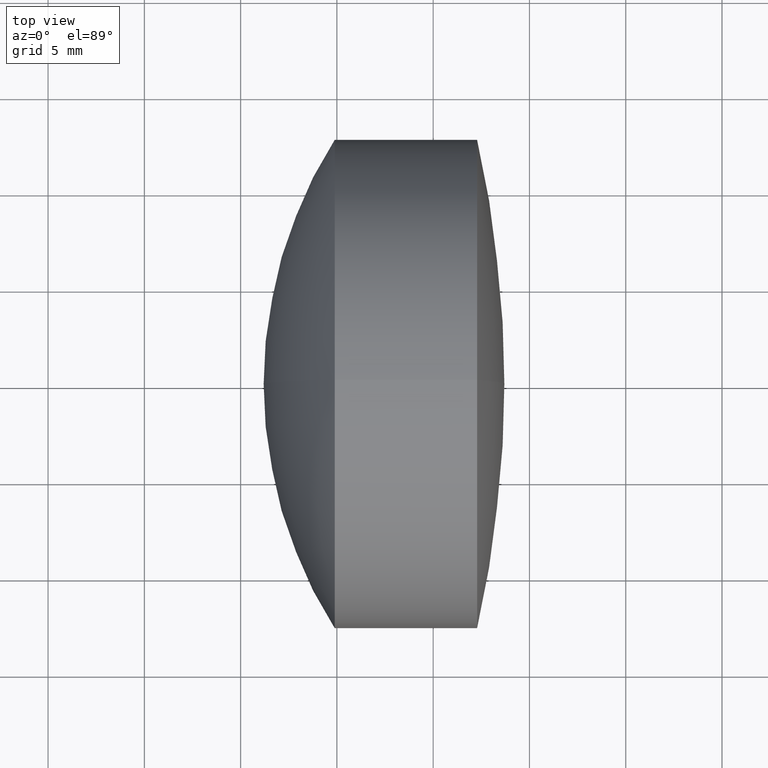
[diagram: clean part render]
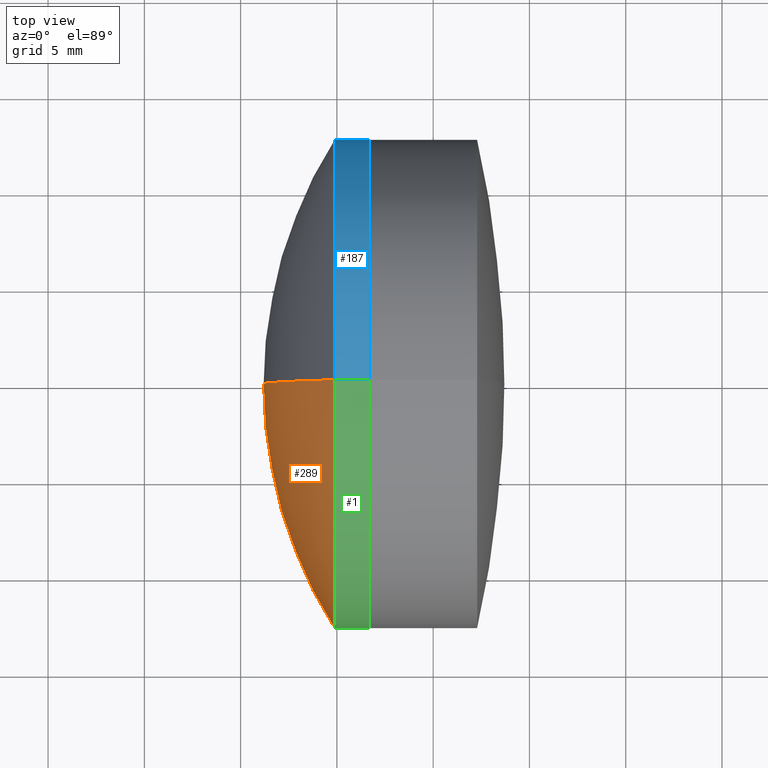
[diagram: same view with three faces highlighted in distinct colors, each labeled with its STEP entity id]
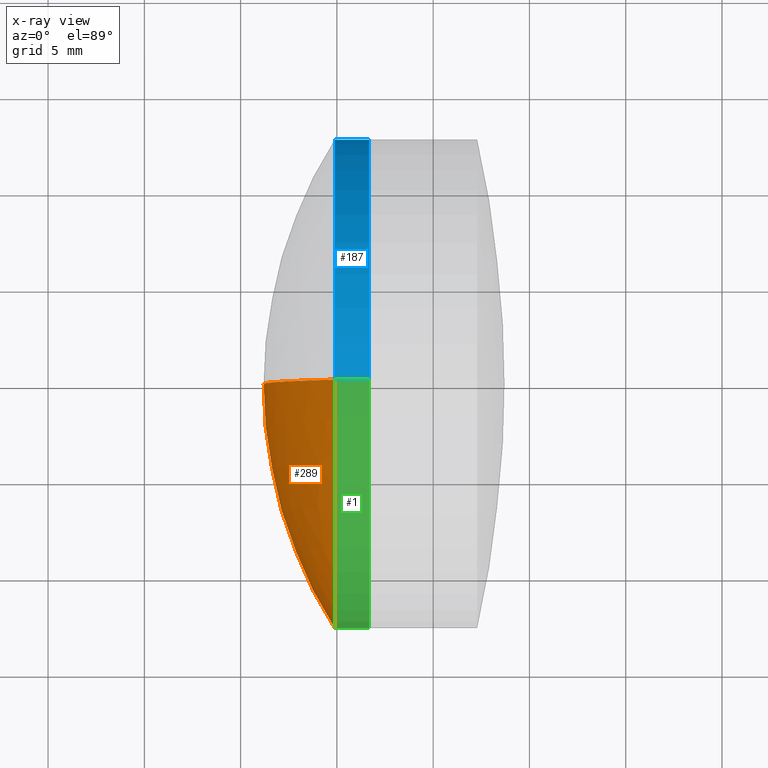
[diagram: x-ray of the same camera — body ghosted, the three highlighted faces saturated]
A machine part, top view with three faces highlighted in distinct colors.
The next image is the same camera in x-ray (body ghosted, the three faces saturated) — at least one of them is partly hidden behind the body in this view.
Their STEP definitions:

[orange] entity #289 — the highlighted spherical surface has radius 23.7 mm.
#5 = SPHERICAL_SURFACE ( 'NONE', #147, 23.69999999999999200 ) ;
#6 = CARTESIAN_POINT ( 'NONE',  ( 244.8958458084194100, 0.0000000000000000000, -2.857671190244262000E-015 ) ) ;
#10 = VERTEX_POINT ( 'NONE', #301 ) ;
#43 = CARTESIAN_POINT ( 'NONE',  ( 224.8858483071701900, 1.555301434917138000E-015, -12.69999999999999800 ) ) ;
#76 = CARTESIAN_POINT ( 'NONE',  ( 244.8958458084194100, 0.0000000000000000000, -2.857671190244262000E-015 ) ) ;
#78 = EDGE_CURVE ( 'NONE', #275, #87, #216, .T. ) ;
#80 = ORIENTED_EDGE ( 'NONE', *, *, #78, .F. ) ;
#87 = VERTEX_POINT ( 'NONE', #123 ) ;
#95 = DIRECTION ( 'NONE',  ( 0.0000000000000000000, -1.224646799147353000E-016, 1.000000000000000000 ) ) ;
#106 = CIRCLE ( 'NONE', #121, 23.69999999999999200 ) ;
#121 = AXIS2_PLACEMENT_3D ( 'NONE', #144, #176, #268 ) ;
#123 = CARTESIAN_POINT ( 'NONE',  ( 221.1958458084194200, 0.0000000000000000000, -1.406464733254649100E-015 ) ) ;
#132 = EDGE_CURVE ( 'NONE', #275, #10, #310, .T. ) ;
#144 = CARTESIAN_POINT ( 'NONE',  ( 244.8958458084194100, 0.0000000000000000000, -2.857671190244262000E-015 ) ) ;
#147 = AXIS2_PLACEMENT_3D ( 'NONE', #6, #347, #224 ) ;
#163 = ORIENTED_EDGE ( 'NONE', *, *, #132, .T. ) ;
#176 = DIRECTION ( 'NONE',  ( 0.0000000000000000000, -1.000000000000000000, 0.0000000000000000000 ) ) ;
#178 = DIRECTION ( 'NONE',  ( -0.0000000000000000000, 1.000000000000000000, 1.224646799147353200E-016 ) ) ;
#207 = EDGE_LOOP ( 'NONE', ( #80, #163, #280 ) ) ;
#216 = CIRCLE ( 'NONE', #247, 23.69999999999999200 ) ;
#224 = DIRECTION ( 'NONE',  ( 0.0000000000000000000, 0.0000000000000000000, 1.000000000000000000 ) ) ;
#242 = DIRECTION ( 'NONE',  ( -1.000000000000000000, -0.0000000000000000000, -0.0000000000000000000 ) ) ;
#247 = AXIS2_PLACEMENT_3D ( 'NONE', #76, #178, #95 ) ;
#268 = DIRECTION ( 'NONE',  ( 0.0000000000000000000, 0.0000000000000000000, -1.000000000000000000 ) ) ;
#274 = DIRECTION ( 'NONE',  ( 0.0000000000000000000, 0.0000000000000000000, 1.000000000000000000 ) ) ;
#275 = VERTEX_POINT ( 'NONE', #43 ) ;
#277 = FACE_OUTER_BOUND ( 'NONE', #207, .T. ) ;
#280 = ORIENTED_EDGE ( 'NONE', *, *, #308, .T. ) ;
#289 = ADVANCED_FACE ( 'NONE', ( #277 ), #5, .T. ) ;
#301 = CARTESIAN_POINT ( 'NONE',  ( 224.8858483071701900, 0.0000000000000000000, 12.69999999999999400 ) ) ;
#303 = CARTESIAN_POINT ( 'NONE',  ( 224.8858483071701900, 0.0000000000000000000, 0.0000000000000000000 ) ) ;
#308 = EDGE_CURVE ( 'NONE', #10, #87, #106, .T. ) ;
#310 = CIRCLE ( 'NONE', #319, 12.69999999999999600 ) ;
#319 = AXIS2_PLACEMENT_3D ( 'NONE', #303, #242, #274 ) ;
#347 = DIRECTION ( 'NONE',  ( 0.0000000000000000000, 1.000000000000000000, 0.0000000000000000000 ) ) ;

[blue] entity #187 — the highlighted cylindrical surface (partial cylindrical patch) has radius 12.7 mm, axis along (-1, -0, -0).
#4 = DIRECTION ( 'NONE',  ( -1.000000000000000000, -0.0000000000000000000, -0.0000000000000000000 ) ) ;
#7 = AXIS2_PLACEMENT_3D ( 'NONE', #159, #4, #297 ) ;
#10 = VERTEX_POINT ( 'NONE', #301 ) ;
#25 = VERTEX_POINT ( 'NONE', #101 ) ;
#31 = EDGE_CURVE ( 'NONE', #10, #275, #182, .T. ) ;
#38 = ORIENTED_EDGE ( 'NONE', *, *, #302, .T. ) ;
#43 = CARTESIAN_POINT ( 'NONE',  ( 224.8858483071701900, 1.555301434917138000E-015, -12.69999999999999800 ) ) ;
#51 = CIRCLE ( 'NONE', #7, 12.69999999999999800 ) ;
#52 = EDGE_CURVE ( 'NONE', #25, #10, #96, .T. ) ;
#53 = VECTOR ( 'NONE', #217, 1000.000000000000000 ) ;
#64 = CARTESIAN_POINT ( 'NONE',  ( -9.702612178336682500, 0.0000000000000000000, 12.69999999999999600 ) ) ;
#73 = FACE_OUTER_BOUND ( 'NONE', #244, .T. ) ;
#75 = ORIENTED_EDGE ( 'NONE', *, *, #52, .F. ) ;
#91 = CYLINDRICAL_SURFACE ( 'NONE', #118, 12.69999999999999600 ) ;
#92 = DIRECTION ( 'NONE',  ( 0.0000000000000000000, 0.0000000000000000000, 1.000000000000000000 ) ) ;
#96 = LINE ( 'NONE', #64, #114 ) ;
#101 = CARTESIAN_POINT ( 'NONE',  ( 226.6753194837398000, 0.0000000000000000000, 12.69999999999999800 ) ) ;
#114 = VECTOR ( 'NONE', #304, 1000.000000000000000 ) ;
#118 = AXIS2_PLACEMENT_3D ( 'NONE', #272, #171, #199 ) ;
#122 = LINE ( 'NONE', #254, #53 ) ;
#158 = CARTESIAN_POINT ( 'NONE',  ( 226.6753194837398000, 1.555301434917138400E-015, -12.69999999999999900 ) ) ;
#159 = CARTESIAN_POINT ( 'NONE',  ( 226.6753194837398000, 0.0000000000000000000, 0.0000000000000000000 ) ) ;
#167 = CARTESIAN_POINT ( 'NONE',  ( 224.8858483071701900, 0.0000000000000000000, 0.0000000000000000000 ) ) ;
#171 = DIRECTION ( 'NONE',  ( -1.000000000000000000, -0.0000000000000000000, -0.0000000000000000000 ) ) ;
#182 = CIRCLE ( 'NONE', #278, 12.69999999999999600 ) ;
#187 = ADVANCED_FACE ( 'NONE', ( #73 ), #91, .T. ) ;
#199 = DIRECTION ( 'NONE',  ( 0.0000000000000000000, 0.0000000000000000000, 1.000000000000000000 ) ) ;
#211 = ORIENTED_EDGE ( 'NONE', *, *, #31, .F. ) ;
#217 = DIRECTION ( 'NONE',  ( -1.000000000000000000, -0.0000000000000000000, -0.0000000000000000000 ) ) ;
#244 = EDGE_LOOP ( 'NONE', ( #309, #38, #211, #75 ) ) ;
#254 = CARTESIAN_POINT ( 'NONE',  ( -9.702612178336682500, 1.555301434917138000E-015, -12.69999999999999600 ) ) ;
#272 = CARTESIAN_POINT ( 'NONE',  ( -9.702612178336682500, 0.0000000000000000000, 0.0000000000000000000 ) ) ;
#275 = VERTEX_POINT ( 'NONE', #43 ) ;
#278 = AXIS2_PLACEMENT_3D ( 'NONE', #167, #282, #92 ) ;
#282 = DIRECTION ( 'NONE',  ( -1.000000000000000000, -0.0000000000000000000, -0.0000000000000000000 ) ) ;
#297 = DIRECTION ( 'NONE',  ( 0.0000000000000000000, 0.0000000000000000000, 1.000000000000000000 ) ) ;
#301 = CARTESIAN_POINT ( 'NONE',  ( 224.8858483071701900, 0.0000000000000000000, 12.69999999999999400 ) ) ;
#302 = EDGE_CURVE ( 'NONE', #346, #275, #122, .T. ) ;
#304 = DIRECTION ( 'NONE',  ( -1.000000000000000000, -0.0000000000000000000, -0.0000000000000000000 ) ) ;
#309 = ORIENTED_EDGE ( 'NONE', *, *, #344, .T. ) ;
#344 = EDGE_CURVE ( 'NONE', #25, #346, #51, .T. ) ;
#346 = VERTEX_POINT ( 'NONE', #158 ) ;

[green] entity #1 — the highlighted cylindrical surface (partial cylindrical patch) has radius 12.7 mm, axis along (-1, -0, -0).
#1 = ADVANCED_FACE ( 'NONE', ( #256 ), #59, .T. ) ;
#10 = VERTEX_POINT ( 'NONE', #301 ) ;
#19 = DIRECTION ( 'NONE',  ( -1.000000000000000000, -0.0000000000000000000, -0.0000000000000000000 ) ) ;
#25 = VERTEX_POINT ( 'NONE', #101 ) ;
#29 = AXIS2_PLACEMENT_3D ( 'NONE', #174, #19, #105 ) ;
#40 = ORIENTED_EDGE ( 'NONE', *, *, #273, .T. ) ;
#43 = CARTESIAN_POINT ( 'NONE',  ( 224.8858483071701900, 1.555301434917138000E-015, -12.69999999999999800 ) ) ;
#52 = EDGE_CURVE ( 'NONE', #25, #10, #96, .T. ) ;
#53 = VECTOR ( 'NONE', #217, 1000.000000000000000 ) ;
#59 = CYLINDRICAL_SURFACE ( 'NONE', #298, 12.69999999999999600 ) ;
#63 = CIRCLE ( 'NONE', #29, 12.69999999999999800 ) ;
#64 = CARTESIAN_POINT ( 'NONE',  ( -9.702612178336682500, 0.0000000000000000000, 12.69999999999999600 ) ) ;
#93 = EDGE_LOOP ( 'NONE', ( #245, #40, #322, #107 ) ) ;
#96 = LINE ( 'NONE', #64, #114 ) ;
#97 = DIRECTION ( 'NONE',  ( -1.000000000000000000, -0.0000000000000000000, -0.0000000000000000000 ) ) ;
#101 = CARTESIAN_POINT ( 'NONE',  ( 226.6753194837398000, 0.0000000000000000000, 12.69999999999999800 ) ) ;
#105 = DIRECTION ( 'NONE',  ( 0.0000000000000000000, 0.0000000000000000000, 1.000000000000000000 ) ) ;
#107 = ORIENTED_EDGE ( 'NONE', *, *, #132, .F. ) ;
#114 = VECTOR ( 'NONE', #304, 1000.000000000000000 ) ;
#122 = LINE ( 'NONE', #254, #53 ) ;
#132 = EDGE_CURVE ( 'NONE', #275, #10, #310, .T. ) ;
#141 = DIRECTION ( 'NONE',  ( 0.0000000000000000000, 0.0000000000000000000, 1.000000000000000000 ) ) ;
#158 = CARTESIAN_POINT ( 'NONE',  ( 226.6753194837398000, 1.555301434917138400E-015, -12.69999999999999900 ) ) ;
#174 = CARTESIAN_POINT ( 'NONE',  ( 226.6753194837398000, 0.0000000000000000000, 0.0000000000000000000 ) ) ;
#217 = DIRECTION ( 'NONE',  ( -1.000000000000000000, -0.0000000000000000000, -0.0000000000000000000 ) ) ;
#218 = CARTESIAN_POINT ( 'NONE',  ( -9.702612178336682500, 0.0000000000000000000, 0.0000000000000000000 ) ) ;
#242 = DIRECTION ( 'NONE',  ( -1.000000000000000000, -0.0000000000000000000, -0.0000000000000000000 ) ) ;
#245 = ORIENTED_EDGE ( 'NONE', *, *, #302, .F. ) ;
#254 = CARTESIAN_POINT ( 'NONE',  ( -9.702612178336682500, 1.555301434917138000E-015, -12.69999999999999600 ) ) ;
#256 = FACE_OUTER_BOUND ( 'NONE', #93, .T. ) ;
#273 = EDGE_CURVE ( 'NONE', #346, #25, #63, .T. ) ;
#274 = DIRECTION ( 'NONE',  ( 0.0000000000000000000, 0.0000000000000000000, 1.000000000000000000 ) ) ;
#275 = VERTEX_POINT ( 'NONE', #43 ) ;
#298 = AXIS2_PLACEMENT_3D ( 'NONE', #218, #97, #141 ) ;
#301 = CARTESIAN_POINT ( 'NONE',  ( 224.8858483071701900, 0.0000000000000000000, 12.69999999999999400 ) ) ;
#302 = EDGE_CURVE ( 'NONE', #346, #275, #122, .T. ) ;
#303 = CARTESIAN_POINT ( 'NONE',  ( 224.8858483071701900, 0.0000000000000000000, 0.0000000000000000000 ) ) ;
#304 = DIRECTION ( 'NONE',  ( -1.000000000000000000, -0.0000000000000000000, -0.0000000000000000000 ) ) ;
#310 = CIRCLE ( 'NONE', #319, 12.69999999999999600 ) ;
#319 = AXIS2_PLACEMENT_3D ( 'NONE', #303, #242, #274 ) ;
#322 = ORIENTED_EDGE ( 'NONE', *, *, #52, .T. ) ;
#346 = VERTEX_POINT ( 'NONE', #158 ) ;